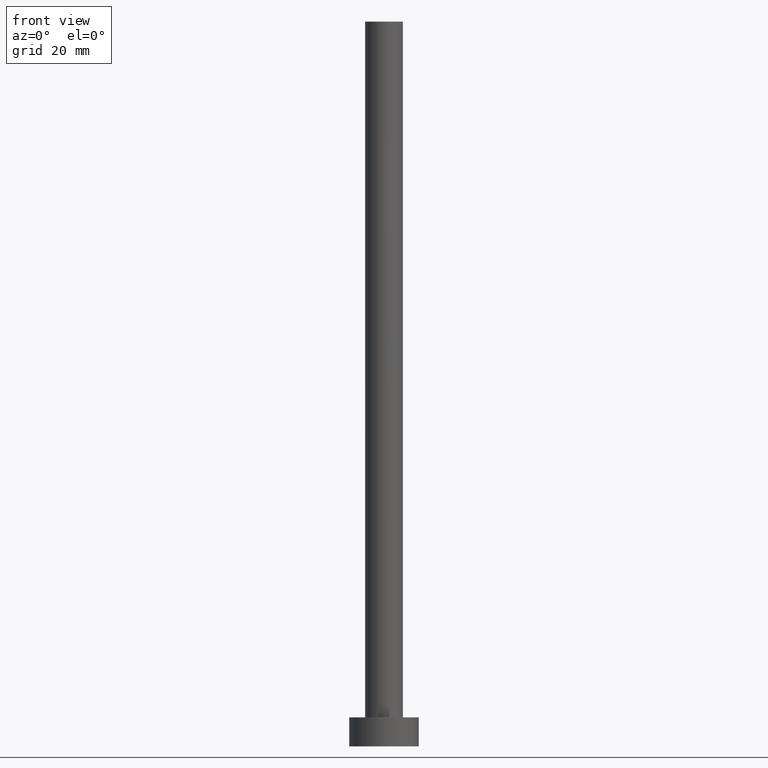
[diagram: clean part render]
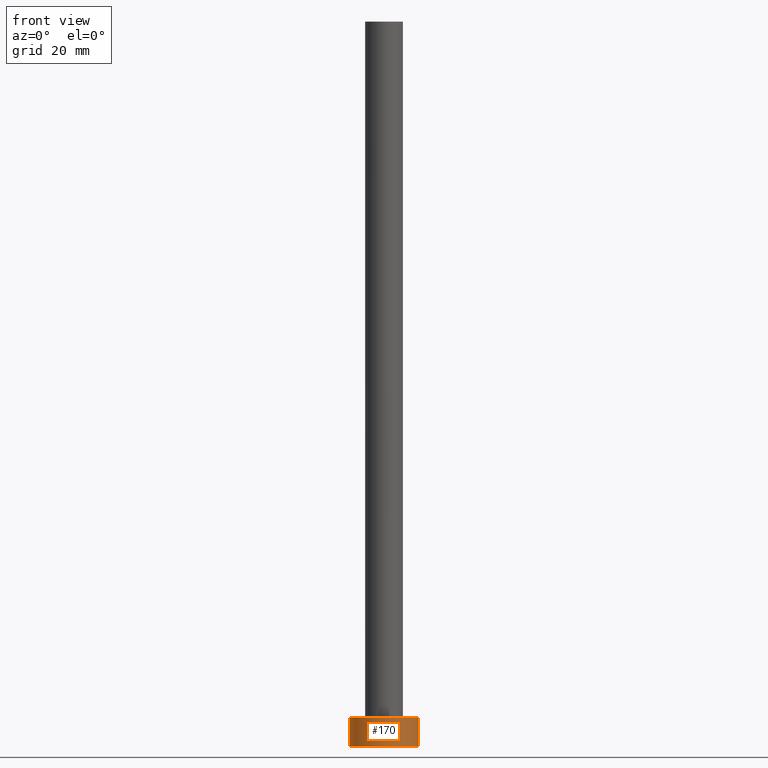
[diagram: same view with one face highlighted and labeled with its STEP entity id]
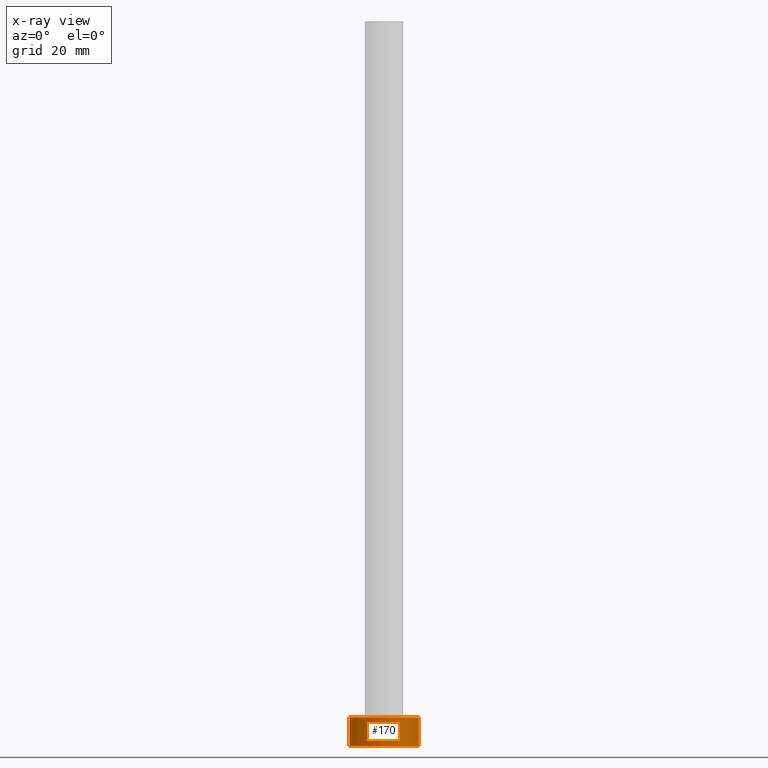
[diagram: x-ray of the same camera — body ghosted, the highlighted face saturated]
A machine part, front view. The second image highlights one B-rep face of the part: STEP entity #170.
The next image is the same camera in x-ray: the body ghosted, the highlighted face saturated — about 0% of this face is hidden behind the body in this view.
In plain terms, the highlighted cylindrical surface (edge-blend (fillet) strip) has radius 6 mm, axis along (-0, -0, -1).
Its self-contained STEP definition (entity closure, byte-faithful):
#1 = VECTOR ( 'NONE', #198, 1000.000000000000000 ) ;
#12 = AXIS2_PLACEMENT_3D ( 'NONE', #74, #255, #233 ) ;
#29 = EDGE_LOOP ( 'NONE', ( #165, #151, #132, #185 ) ) ;
#53 = FACE_OUTER_BOUND ( 'NONE', #29, .T. ) ;
#55 = VECTOR ( 'NONE', #113, 1000.000000000000000 ) ;
#64 = CARTESIAN_POINT ( 'NONE',  ( 0.000000000000000000, 0.000000000000000000, 5.000000000000000000 ) ) ;
#65 = AXIS2_PLACEMENT_3D ( 'NONE', #95, #155, #222 ) ;
#67 = VERTEX_POINT ( 'NONE', #193 ) ;
#74 = CARTESIAN_POINT ( 'NONE',  ( 0.000000000000000000, 0.000000000000000000, 5.000000000000000000 ) ) ;
#75 = LINE ( 'NONE', #231, #55 ) ;
#83 = EDGE_CURVE ( 'NONE', #228, #148, #75, .T. ) ;
#95 = CARTESIAN_POINT ( 'NONE',  ( 0.000000000000000000, 0.000000000000000000, 0.000000000000000000 ) ) ;
#103 = CIRCLE ( 'NONE', #250, 6.000000000000000888 ) ;
#113 = DIRECTION ( 'NONE',  ( -0.000000000000000000, -0.000000000000000000, -1.000000000000000000 ) ) ;
#132 = ORIENTED_EDGE ( 'NONE', *, *, #207, .T. ) ;
#134 = CYLINDRICAL_SURFACE ( 'NONE', #12, 6.000000000000000888 ) ;
#143 = CARTESIAN_POINT ( 'NONE',  ( 6.000000000000000888, 7.347880794884120722E-16, 5.000000000000000000 ) ) ;
#148 = VERTEX_POINT ( 'NONE', #158 ) ;
#151 = ORIENTED_EDGE ( 'NONE', *, *, #157, .F. ) ;
#155 = DIRECTION ( 'NONE',  ( 0.000000000000000000, 0.000000000000000000, 1.000000000000000000 ) ) ;
#157 = EDGE_CURVE ( 'NONE', #241, #228, #103, .T. ) ;
#158 = CARTESIAN_POINT ( 'NONE',  ( 6.000000000000000888, 7.347880794884120722E-16, 0.000000000000000000 ) ) ;
#165 = ORIENTED_EDGE ( 'NONE', *, *, #83, .F. ) ;
#170 = ADVANCED_FACE ( 'NONE', ( #53 ), #134, .T. ) ;
#174 = CARTESIAN_POINT ( 'NONE',  ( -6.000000000000000888, 0.000000000000000000, 5.000000000000000000 ) ) ;
#175 = CIRCLE ( 'NONE', #65, 6.000000000000000888 ) ;
#185 = ORIENTED_EDGE ( 'NONE', *, *, #224, .T. ) ;
#193 = CARTESIAN_POINT ( 'NONE',  ( -6.000000000000000888, 0.000000000000000000, 0.000000000000000000 ) ) ;
#195 = CARTESIAN_POINT ( 'NONE',  ( -6.000000000000000888, 0.000000000000000000, 5.000000000000000000 ) ) ;
#198 = DIRECTION ( 'NONE',  ( -0.000000000000000000, -0.000000000000000000, -1.000000000000000000 ) ) ;
#199 = DIRECTION ( 'NONE',  ( 0.000000000000000000, 0.000000000000000000, 1.000000000000000000 ) ) ;
#207 = EDGE_CURVE ( 'NONE', #241, #67, #234, .T. ) ;
#216 = DIRECTION ( 'NONE',  ( 1.000000000000000000, 0.000000000000000000, 0.000000000000000000 ) ) ;
#222 = DIRECTION ( 'NONE',  ( 1.000000000000000000, 0.000000000000000000, 0.000000000000000000 ) ) ;
#224 = EDGE_CURVE ( 'NONE', #67, #148, #175, .T. ) ;
#228 = VERTEX_POINT ( 'NONE', #143 ) ;
#231 = CARTESIAN_POINT ( 'NONE',  ( 6.000000000000000888, 7.347880794884120722E-16, 5.000000000000000000 ) ) ;
#233 = DIRECTION ( 'NONE',  ( -1.000000000000000000, 0.000000000000000000, 0.000000000000000000 ) ) ;
#234 = LINE ( 'NONE', #195, #1 ) ;
#241 = VERTEX_POINT ( 'NONE', #174 ) ;
#250 = AXIS2_PLACEMENT_3D ( 'NONE', #64, #199, #216 ) ;
#255 = DIRECTION ( 'NONE',  ( -0.000000000000000000, -0.000000000000000000, -1.000000000000000000 ) ) ;